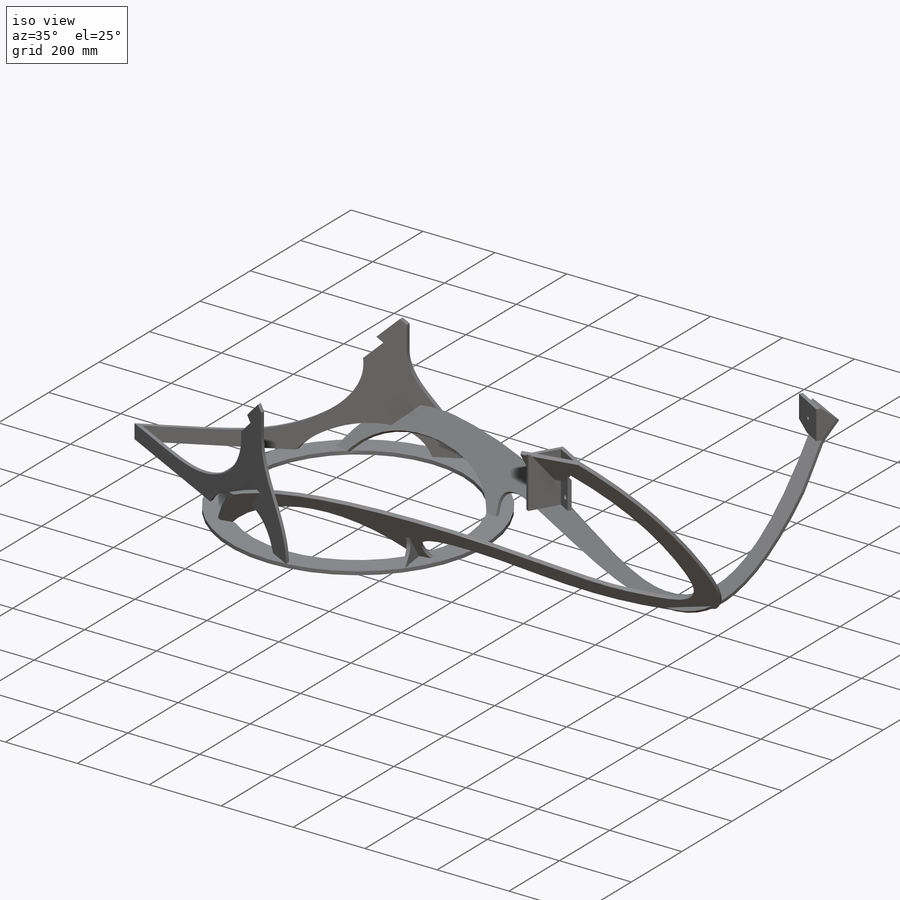
[diagram: iso view]
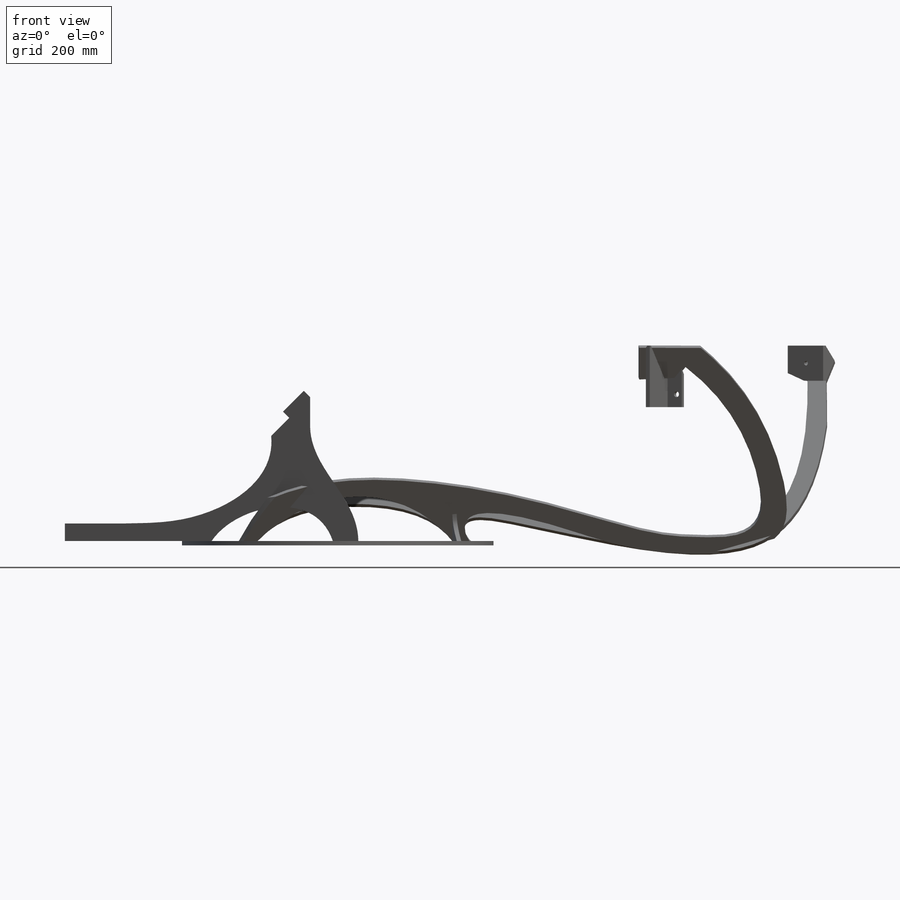
[diagram: front view]
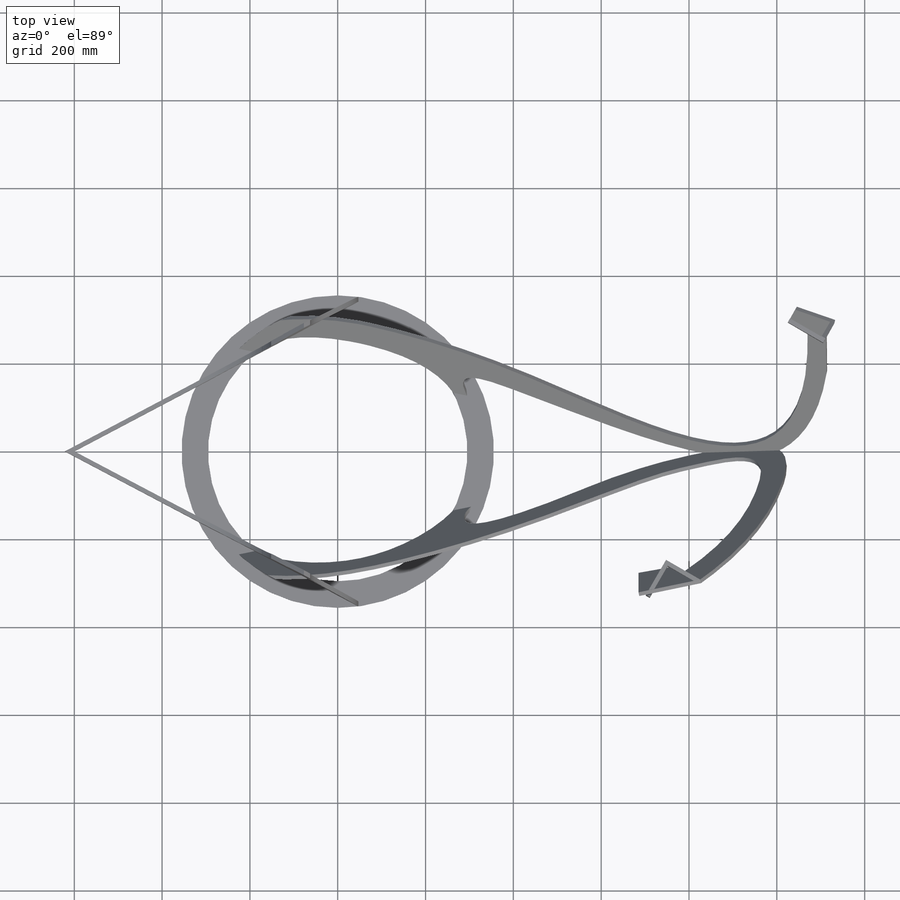
[diagram: top view]
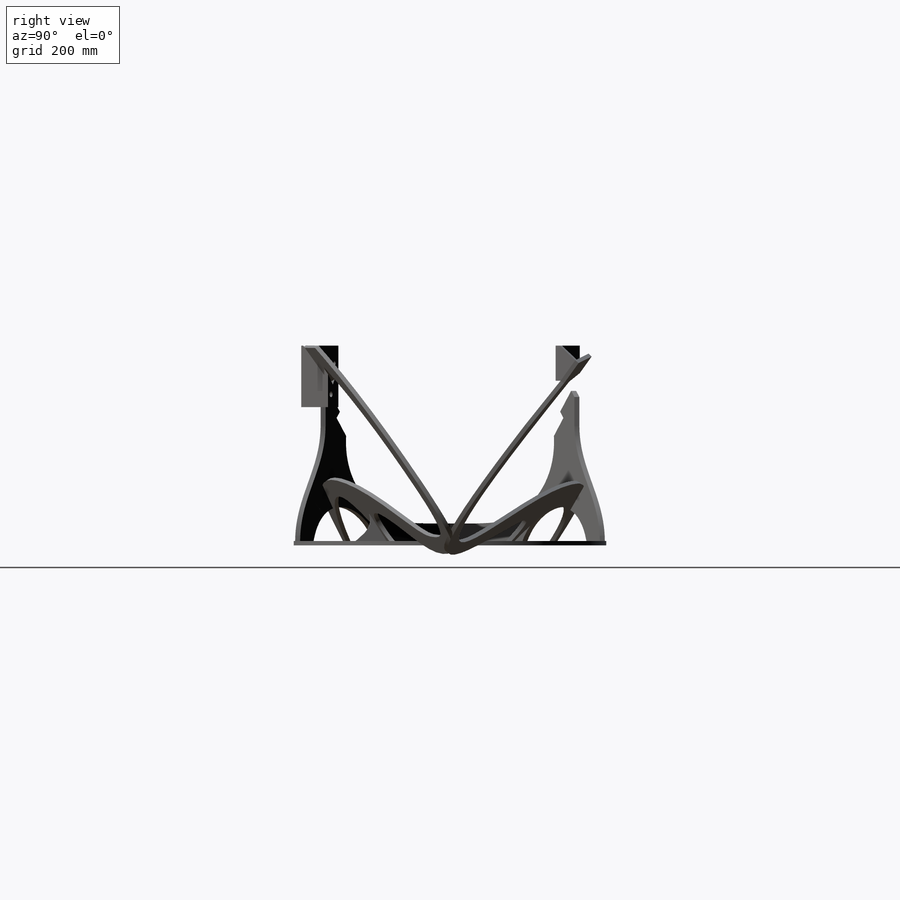
[diagram: right view]
SOLIDWORKS PART (.sldprt)
format: sldprt  version: not decoded by parser v0  size: 929,792 bytes
history: native  units: mm
features: sketch x32, cut_extrude x16, extrude x10, plane x7, material x1 (+12 scaffold rows collapsed; 1 parser-record rows omitted)
feature tree (79):
  scaffold x12  (default folders/planes/origin — collapsed)
  material  "Material <not specified>"
  parser-record x1  (decoder bookkeeping rows leaked as tree rows — omitted from the tree; the rows remain in map.json)
  sketch  "Sketch1"  dims[c1.D3=500.0mm c1.D4=650.0mm c1.D1=500.0mm c1.D2=1000.0mm c2.D1=~914.629542mm c2.D2=~914.629542mm c3.D2=~11.61001deg]
  sketch  "Sketch2"  dims[c1.D1=~456.06073mm c2.D1=45.0deg c2.D2=250.0mm c3.D1=250.0mm c3.D2=250.0mm c4.D2=45.0deg c5.D2=405.0mm c5.D3=~330.070511mm c6.D3=45.0deg]
  plane  "Plane1"
  sketch  "Sketch3"  dims[c1.D1=~214.347829mm c2.D1=120.0deg c2.D2=~577.350269mm c3.D1=~770.291975mm c4.D1=120.0deg c4.D2=40.0mm c4.D3=40.0mm]
  plane  "Plane2"
  sketch  "Sketch4"
  extrude  "Boss-Extrude1"  Depth=10mm
  plane  "Plane3"
  sketch  "Sketch7"  dims[c1.D1=50.0mm c1.D2=50.0mm c2.D1=355.0mm c2.D2=50.0mm]
  sketch  "Sketch8"  dims[D1=30.0mm D2=~38.44792mm]
  cut_extrude  "Cut-Extrude3"  Depth=10mm
  plane  "Plane4"
  sketch  "Sketch9"
  extrude  "Boss-Extrude2"  Depth=10mm
  sketch  "Sketch13"  dims[D1=20.0mm D2=~604.395391mm]
  extrude  "Boss-Extrude4"  [1 undecoded]
  sketch  "Sketch6"  dims[D1=650.0mm]
  cut_extrude  "Cut-Extrude4"  Depth=1000mm
  plane  "Plane5"
  sketch  "Sketch10"
  sketch  "Sketch11"  dims[D1=650.0mm]
  extrude  "Boss-Extrude3"  Depth=10mm
  sketch  "Sketch15"  dims[D1=~845.821881mm]
  cut_extrude  "Cut-Extrude6"  [1 undecoded]
  plane  "Plane6"
  sketch  "Sketch39"  dims[c1.D1=500.0mm c1.D2=520.0mm c1.D5=580.0mm c1.D6=580.0mm c2.D1=35.0mm c2.D2=10.0mm c2.D3=600.0mm c2.D4=~775.261296mm c3.D4=~179.504851deg c4.D4=10.0mm]
  extrude  "Boss-Extrude7"  Depth=370mm
  sketch  "Sketch41"  dims[D1=250.0mm D2=20.0mm D3=10.0mm D4=20.0mm D5=40.0mm]
  cut_extrude  "Cut-Extrude14"  Depth=900mm
  plane  "Plane7"
  sketch  "Sketch42"  dims[c1.D1=10.0mm c1.D2=10.0mm c1.D3=60.0mm c2.D2=10.0mm c2.D4=280.0mm c2.D1=10.0mm c3.D2=10.0mm c3.D3=~9.559641mm c4.D3=60.0deg c5.D3=10.0mm c5.D4=15.0mm c5.D5=15.0mm c5.D6=~28.783008mm c6.D6=90.0deg c7.D6=10.0mm c7.D7=10.0mm c7.D8=60.0mm c7.D9=~61.346908mm c8.D9=90.0deg c9.D9=45.0mm c9.D7=10.0mm c9.D2=10.0mm c9.D8=5.0mm]
  extrude  "Boss-Extrude8"  Depth=80mm
  sketch  "Sketch43"
  cut_extrude  "Cut-Extrude15"  Depth=10mm
  sketch  "Sketch46"
  cut_extrude  "Cut-Extrude16"  [1 undecoded]
  sketch  "Sketch47"
  cut_extrude  "Cut-Extrude17"  Depth=10mm
  sketch  "Sketch49"  dims[D1=10.0mm]
  cut_extrude  "Cut-Extrude18"  Depth=10mm
  sketch  "Sketch51"
  extrude  "Boss-Extrude9"  [1 undecoded]
  sketch  "Sketch53"  dims[D1=110.0mm]
  cut_extrude  "Cut-Extrude19"  Depth=200mm
  sketch  "Sketch54"
  cut_extrude  "Cut-Extrude20"  [1 undecoded]
  sketch  "Sketch55"
  cut_extrude  "Cut-Extrude21"  Depth=200mm
  sketch  "Sketch58"
  cut_extrude  "Cut-Extrude22"  [1 undecoded]
  sketch  "Sketch61"  dims[D1=10.0mm]
  extrude  "Boss-Extrude10"  [1 undecoded]
  sketch  "Sketch62"
  extrude  "Boss-Extrude11"  Depth=10mm
  sketch  "Sketch63"
  cut_extrude  "Cut-Extrude25"  [1 undecoded]
  sketch  "Sketch64"
  extrude  "Boss-Extrude12"  Depth=60mm
  sketch  "Sketch65"
  cut_extrude  "Cut-Extrude26"  [1 undecoded]
  sketch  "Sketch60"  dims[c1.D1=10.0mm c1.D2=13.0mm c1.D3=72.5mm c1.D4=~248.238145mm c2.D4=45.0deg c2.D5=15.0mm c3.D4=~104.218434mm c4.D4=45.0deg]
  cut_extrude  "Cut-Extrude27"  Depth=10mm
  sketch  "Sketch66"
  sketch  "Sketch68"
  cut_extrude  "Cut-Extrude30"  Depth=10mm
decode coverage: 33 of 58 modeling features carry decoded parameters
note: ~ marks probable driven/reference dimensions
note: 9 parameter values undecoded
summary: no parameter record found for 9 features
note: suppression state not decoded; provenance and decode notes live in map.json
